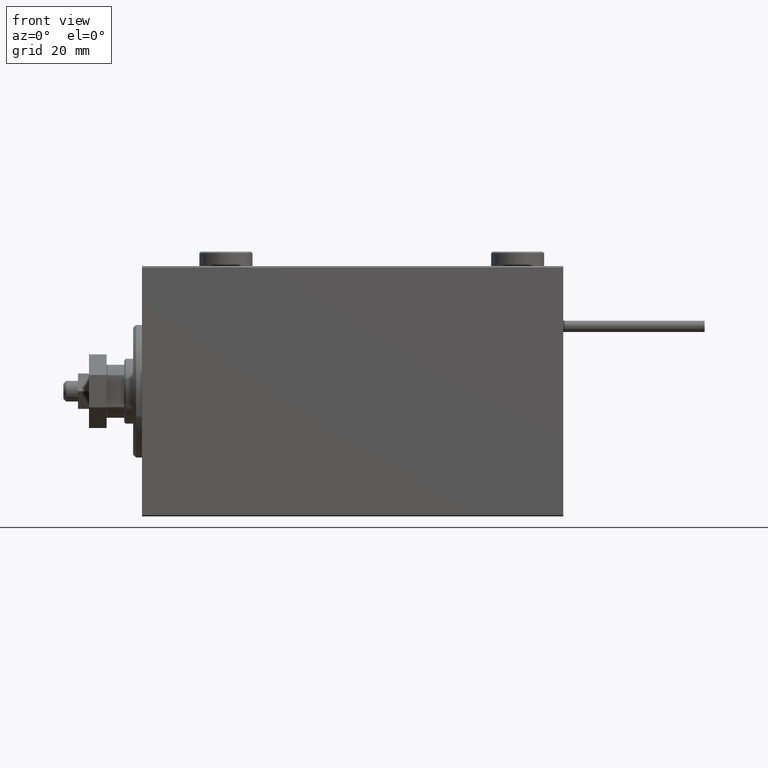
[diagram: clean part render]
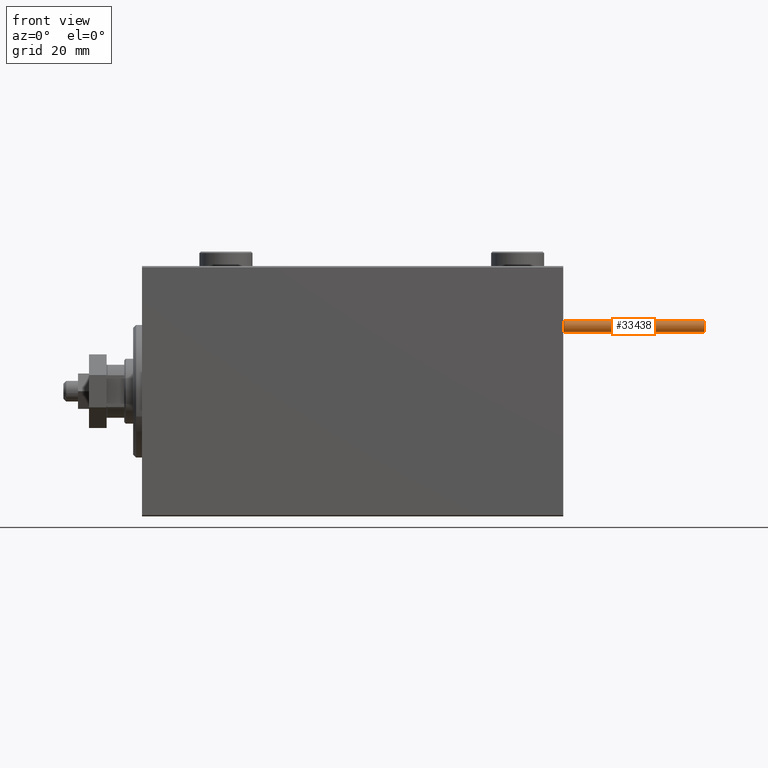
[diagram: same view with one face highlighted and labeled with its STEP entity id]
A machine part, front view. The second image highlights one B-rep face of the part: STEP entity #33438.
In plain terms, the highlighted cylindrical surface (edge-blend (fillet) strip) has radius 1.9 mm, axis along (-1, -0, 0).
Its self-contained STEP definition (entity closure, byte-faithful):
#1241 = DIRECTION ( 'NONE',  ( 1.000000000000000000, 0.000000000000000000, 0.000000000000000000 ) ) ;
#2098 = CIRCLE ( 'NONE', #46222, 1.899999999999999467 ) ;
#3009 = DIRECTION ( 'NONE',  ( -0.000000000000000000, -0.000000000000000000, -1.000000000000000000 ) ) ;
#7136 = VERTEX_POINT ( 'NONE', #8262 ) ;
#7198 = EDGE_CURVE ( 'NONE', #7136, #34066, #2098, .T. ) ;
#8201 = VERTEX_POINT ( 'NONE', #23843 ) ;
#8262 = CARTESIAN_POINT ( 'NONE',  ( -1.899999999999999467, 0.000000000000000000, 48.00000000000000000 ) ) ;
#10377 = CARTESIAN_POINT ( 'NONE',  ( 1.899999999999999467, 2.326828918379970872E-16, 48.00000000000000000 ) ) ;
#11405 = CARTESIAN_POINT ( 'NONE',  ( -1.899999999999999467, 0.000000000000000000, 48.00000000000000000 ) ) ;
#12423 = ORIENTED_EDGE ( 'NONE', *, *, #44372, .F. ) ;
#12422 = DIRECTION ( 'NONE',  ( 1.000000000000000000, 0.000000000000000000, 0.000000000000000000 ) ) ;
#12447 = DIRECTION ( 'NONE',  ( 0.000000000000000000, 0.000000000000000000, 1.000000000000000000 ) ) ;
#12973 = CARTESIAN_POINT ( 'NONE',  ( 0.000000000000000000, 0.000000000000000000, 0.000000000000000000 ) ) ;
#22495 = LINE ( 'NONE', #42821, #45107 ) ;
#23843 = CARTESIAN_POINT ( 'NONE',  ( 1.899999999999999467, 2.326828918379970872E-16, 0.000000000000000000 ) ) ;
#26988 = CYLINDRICAL_SURFACE ( 'NONE', #28758, 1.899999999999999467 ) ;
#28758 = AXIS2_PLACEMENT_3D ( 'NONE', #39219, #3009, #42877 ) ;
#31716 = DIRECTION ( 'NONE',  ( 0.000000000000000000, 0.000000000000000000, 1.000000000000000000 ) ) ;
#33438 = ADVANCED_FACE ( 'NONE', ( #42621 ), #26988, .T. ) ;
#34066 = VERTEX_POINT ( 'NONE', #10377 ) ;
#35389 = LINE ( 'NONE', #11405, #40009 ) ;
#36974 = AXIS2_PLACEMENT_3D ( 'NONE', #12973, #12447, #1241 ) ;
#38006 = ORIENTED_EDGE ( 'NONE', *, *, #48140, .T. ) ;
#38925 = DIRECTION ( 'NONE',  ( -0.000000000000000000, -0.000000000000000000, -1.000000000000000000 ) ) ;
#39219 = CARTESIAN_POINT ( 'NONE',  ( 0.000000000000000000, 0.000000000000000000, 48.00000000000000000 ) ) ;
#40009 = VECTOR ( 'NONE', #50768, 1000.000000000000000 ) ;
#41274 = EDGE_CURVE ( 'NONE', #7136, #49205, #35389, .T. ) ;
#41279 = ORIENTED_EDGE ( 'NONE', *, *, #41274, .T. ) ;
#41533 = EDGE_LOOP ( 'NONE', ( #12423, #42398, #41279, #38006 ) ) ;
#42398 = ORIENTED_EDGE ( 'NONE', *, *, #7198, .F. ) ;
#42621 = FACE_OUTER_BOUND ( 'NONE', #41533, .T. ) ;
#42821 = CARTESIAN_POINT ( 'NONE',  ( 1.899999999999999467, 2.326828918379970872E-16, 48.00000000000000000 ) ) ;
#42877 = DIRECTION ( 'NONE',  ( -1.000000000000000000, 0.000000000000000000, 0.000000000000000000 ) ) ;
#44372 = EDGE_CURVE ( 'NONE', #34066, #8201, #22495, .T. ) ;
#44439 = CIRCLE ( 'NONE', #36974, 1.899999999999999467 ) ;
#45107 = VECTOR ( 'NONE', #38925, 1000.000000000000000 ) ;
#46222 = AXIS2_PLACEMENT_3D ( 'NONE', #47350, #31716, #12422 ) ;
#47314 = CARTESIAN_POINT ( 'NONE',  ( -1.899999999999999467, 0.000000000000000000, 0.000000000000000000 ) ) ;
#47350 = CARTESIAN_POINT ( 'NONE',  ( 0.000000000000000000, 0.000000000000000000, 48.00000000000000000 ) ) ;
#48140 = EDGE_CURVE ( 'NONE', #49205, #8201, #44439, .T. ) ;
#49205 = VERTEX_POINT ( 'NONE', #47314 ) ;
#50768 = DIRECTION ( 'NONE',  ( -0.000000000000000000, -0.000000000000000000, -1.000000000000000000 ) ) ;